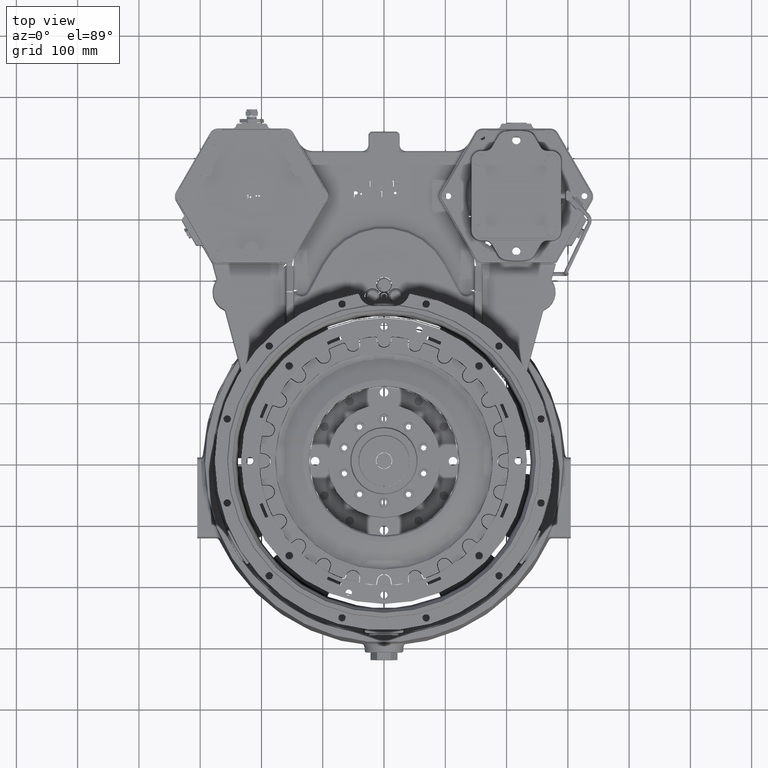
[diagram: clean part render]
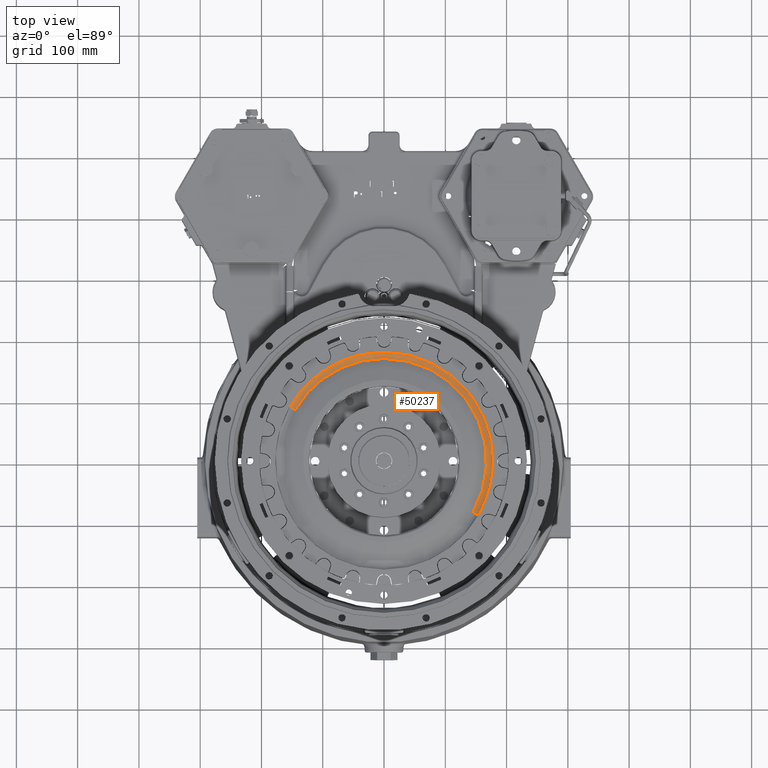
[diagram: same view with one face highlighted and labeled with its STEP entity id]
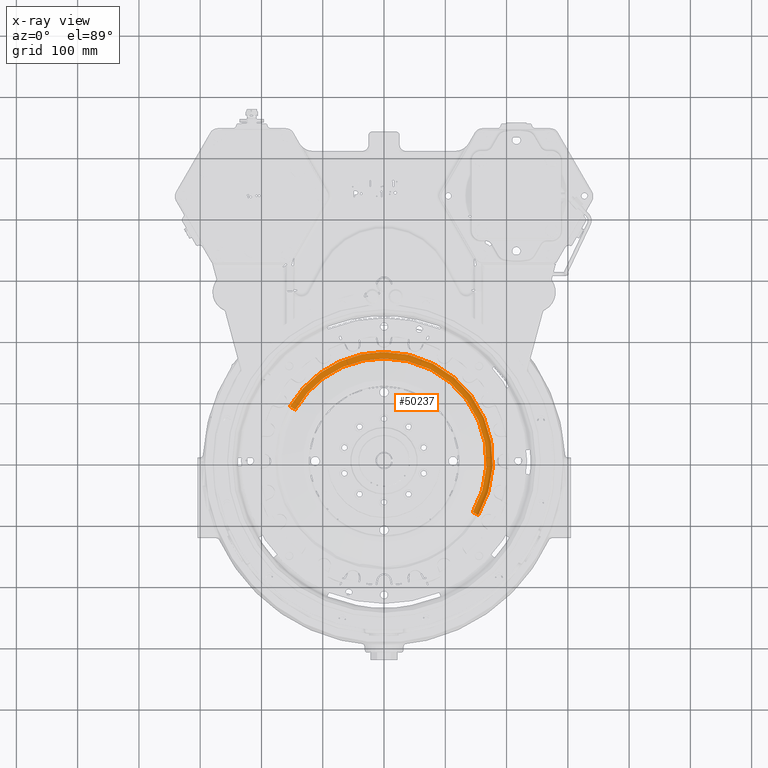
[diagram: x-ray of the same camera — body ghosted, the highlighted face saturated]
A machine part, top view. The second image highlights one B-rep face of the part: STEP entity #50237.
The next image is the same camera in x-ray: the body ghosted, the highlighted face saturated — about 0% of this face is hidden behind the body in this view.
In plain terms, the highlighted face is a freeform B-spline surface patch.
Its self-contained STEP definition (entity closure, byte-faithful):
#5555 = DIRECTION ( 'NONE',  ( 0.8660254037844367100, -0.5000000000000033300, 3.518312401981130000E-015 ) ) ;
#7209 = CARTESIAN_POINT ( 'NONE',  ( 5.052826164383231900E-015, 6.564501840092637900E-013, 93.60950430527979900 ) ) ;
#9777 = CARTESIAN_POINT ( 'NONE',  ( 23.49752889336309600, 391.4748006249931800, 89.89060450035138700 ) ) ;
#12243 = CARTESIAN_POINT ( 'NONE',  ( -153.7195091717375100, 88.75000000000127900, 93.60950430527917400 ) ) ;
#13394 =( BOUNDED_SURFACE ( )  B_SPLINE_SURFACE ( 3, 3, ( 
 ( #96590, #67897, #169939, #82561 ),
 ( #184705, #97228, #9777, #111826 ),
 ( #24474, #126537, #39209, #141216 ),
 ( #53816, #155896, #68540, #170572 ) ),
 .UNSPECIFIED., .F., .F., .F. ) 
 B_SPLINE_SURFACE_WITH_KNOTS ( ( 4, 4 ),
 ( 4, 4 ),
 ( 0.0000000000000000000, 1.000000000000000000 ),
 ( 0.0000000000000000000, 1.000000000000000000 ),
 .UNSPECIFIED. ) 
 GEOMETRIC_REPRESENTATION_ITEM ( )  RATIONAL_B_SPLINE_SURFACE ( (
 ( 1.000000000000000000, 0.3333333333333334300, 0.3333333333333334300, 1.000000000000000000),
 ( 0.8540516408934673000, 0.2846838802978224900, 0.2846838802978224900, 0.8540516408934673000),
 ( 0.8540516408934673000, 0.2846838802978224900, 0.2846838802978224900, 0.8540516408934673000),
 ( 1.000000000000000000, 0.3333333333333334300, 0.3333333333333334300, 1.000000000000000000) ) ) 
 REPRESENTATION_ITEM ( '' )  SURFACE ( )  );
#21838 = DIRECTION ( 'NONE',  ( 0.8660254037844367100, -0.5000000000000033300, 3.518312401981130000E-015 ) ) ;
#22291 = DIRECTION ( 'NONE',  ( 0.5000000000000033300, 0.8660254037844368200, -6.047707824420468300E-015 ) ) ;
#24474 = CARTESIAN_POINT ( 'NONE',  ( 148.4506586932584200, -85.70802775793014000, 88.30469595753220300 ) ) ;
#24581 = ORIENTED_EDGE ( 'NONE', *, *, #58528, .F. ) ;
#26157 = DIRECTION ( 'NONE',  ( -0.0000000000000000000, 6.983291480818741000E-015, 1.000000000000000000 ) ) ;
#30792 = VERTEX_POINT ( 'NONE', #12243 ) ;
#38412 = CARTESIAN_POINT ( 'NONE',  ( -144.9063219721473700, 83.66170399789926600, 89.54616092536556900 ) ) ;
#39007 = CARTESIAN_POINT ( 'NONE',  ( -147.1120595871193500, 84.93518720366508000, 97.94256037111335900 ) ) ;
#39209 = CARTESIAN_POINT ( 'NONE',  ( 22.96539682260309700, 382.6093451444481800, 88.30469595752893500 ) ) ;
#40049 = VERTEX_POINT ( 'NONE', #38412 ) ;
#44016 = CARTESIAN_POINT ( 'NONE',  ( 144.9063219721473700, -83.66170399789797300, 89.54616092536673500 ) ) ;
#50237 = ADVANCED_FACE ( 'NONE', ( #159745 ), #13394, .F. ) ;
#53628 = DIRECTION ( 'NONE',  ( -0.8660254037844361500, 0.5000000000000040000, -3.163317448590893600E-015 ) ) ;
#53816 = CARTESIAN_POINT ( 'NONE',  ( 144.9063219721473700, -83.66170399789797300, 89.54616092536673500 ) ) ;
#58528 = EDGE_CURVE ( 'NONE', #111419, #131468, #159134, .T. ) ;
#63114 = CARTESIAN_POINT ( 'NONE',  ( 5.052826164383231900E-015, 6.280746728006716900E-013, 89.54616092536615200 ) ) ;
#67897 = CARTESIAN_POINT ( 'NONE',  ( 331.2195091717387100, 218.6890183434750300, 93.60950430527826400 ) ) ;
#68025 = CIRCLE ( 'NONE', #131271, 167.3234079957961200 ) ;
#68540 = CARTESIAN_POINT ( 'NONE',  ( 22.41708602364983300, 373.4743479421939000, 89.54616092536355200 ) ) ;
#73805 = CIRCLE ( 'NONE', #138403, 8.774198627454444100 ) ;
#77115 = ORIENTED_EDGE ( 'NONE', *, *, #175854, .F. ) ;
#77346 = CARTESIAN_POINT ( 'NONE',  ( 2.679030684924874700E-014, 177.5000000000006500, 93.60950430527856300 ) ) ;
#77792 = DIRECTION ( 'NONE',  ( -0.8660254037844371500, 0.5000000000000024400, -3.483476071338753200E-015 ) ) ;
#82561 = CARTESIAN_POINT ( 'NONE',  ( -153.7195091717375100, 88.75000000000126500, 93.60950430527918800 ) ) ;
#83531 = ORIENTED_EDGE ( 'NONE', *, *, #183733, .T. ) ;
#93014 = DIRECTION ( 'NONE',  ( -0.0000000000000000000, -6.983291480818741000E-015, -1.000000000000000000 ) ) ;
#96590 = CARTESIAN_POINT ( 'NONE',  ( 153.7195091717375100, -88.74999999999994300, 93.60950430528042400 ) ) ;
#97228 = CARTESIAN_POINT ( 'NONE',  ( 327.2783578360118800, 216.0868572603056400, 89.89060450035262300 ) ) ;
#98930 = CIRCLE ( 'NONE', #138471, 167.3234079957960900 ) ;
#102510 = CIRCLE ( 'NONE', #140478, 8.774198627454444100 ) ;
#109253 = DIRECTION ( 'NONE',  ( -0.0000000000000000000, -6.983291480818741000E-015, -1.000000000000000000 ) ) ;
#109723 = CARTESIAN_POINT ( 'NONE',  ( 147.1120595871193500, -84.93518720366368800, 97.94256037111453800 ) ) ;
#111419 = VERTEX_POINT ( 'NONE', #77346 ) ;
#111826 = CARTESIAN_POINT ( 'NONE',  ( -151.8904144713243600, 87.69397168234438300, 89.89060450035351800 ) ) ;
#113515 = CARTESIAN_POINT ( 'NONE',  ( 5.052826164383231900E-015, 6.280746728006716900E-013, 89.54616092536615200 ) ) ;
#113599 = AXIS2_PLACEMENT_3D ( 'NONE', #180487, #93014, #5555 ) ;
#115092 = CARTESIAN_POINT ( 'NONE',  ( 1.852893143996088000E-015, 167.3234079957967700, 89.54616092536498700 ) ) ;
#121125 = VERTEX_POINT ( 'NONE', #44016 ) ;
#124403 = DIRECTION ( 'NONE',  ( 0.8660254037844361500, -0.5000000000000040000, 3.163317448590893600E-015 ) ) ;
#126537 = CARTESIAN_POINT ( 'NONE',  ( 319.8667142091198900, 211.1932896285866300, 88.30469595753012900 ) ) ;
#128230 = DIRECTION ( 'NONE',  ( -0.8660254037844368200, 0.5000000000000033300, -3.483476071338753600E-015 ) ) ;
#131271 = AXIS2_PLACEMENT_3D ( 'NONE', #63114, #165184, #77792 ) ;
#131468 = VERTEX_POINT ( 'NONE', #176899 ) ;
#138403 = AXIS2_PLACEMENT_3D ( 'NONE', #39007, #141036, #53628 ) ;
#138471 = AXIS2_PLACEMENT_3D ( 'NONE', #113515, #26157, #128230 ) ;
#140478 = AXIS2_PLACEMENT_3D ( 'NONE', #109723, #22291, #124403 ) ;
#141036 = DIRECTION ( 'NONE',  ( -0.5000000000000034400, -0.8660254037844367100, 6.047707824420468300E-015 ) ) ;
#141216 = CARTESIAN_POINT ( 'NONE',  ( -148.4506586932584200, 85.70802775793140400, 88.30469595753101000 ) ) ;
#142206 = VERTEX_POINT ( 'NONE', #115092 ) ;
#144001 = EDGE_CURVE ( 'NONE', #121125, #142206, #98930, .T. ) ;
#147893 = ORIENTED_EDGE ( 'NONE', *, *, #150363, .F. ) ;
#148600 = CIRCLE ( 'NONE', #113599, 177.5000000000000000 ) ;
#150363 = EDGE_CURVE ( 'NONE', #142206, #40049, #68025, .T. ) ;
#155896 = CARTESIAN_POINT ( 'NONE',  ( 312.2297299679445400, 206.1509399463967000, 89.54616092536471700 ) ) ;
#159134 = CIRCLE ( 'NONE', #178408, 177.5000000000000000 ) ;
#159702 = EDGE_CURVE ( 'NONE', #131468, #121125, #102510, .T. ) ;
#159745 = FACE_OUTER_BOUND ( 'NONE', #165101, .T. ) ;
#165101 = EDGE_LOOP ( 'NONE', ( #77115, #83531, #147893, #181721, #166183, #24581 ) ) ;
#165184 = DIRECTION ( 'NONE',  ( -0.0000000000000000000, 6.983291480818741000E-015, 1.000000000000000000 ) ) ;
#166183 = ORIENTED_EDGE ( 'NONE', *, *, #159702, .F. ) ;
#169939 = CARTESIAN_POINT ( 'NONE',  ( 23.78049082826366600, 396.1890183434762200, 93.60950430527704200 ) ) ;
#170572 = CARTESIAN_POINT ( 'NONE',  ( -144.9063219721473700, 83.66170399789923800, 89.54616092536556900 ) ) ;
#175854 = EDGE_CURVE ( 'NONE', #30792, #111419, #148600, .T. ) ;
#176899 = CARTESIAN_POINT ( 'NONE',  ( 153.7195091717375100, -88.74999999999994300, 93.60950430528042400 ) ) ;
#178408 = AXIS2_PLACEMENT_3D ( 'NONE', #7209, #109253, #21838 ) ;
#180487 = CARTESIAN_POINT ( 'NONE',  ( 5.052826164383231900E-015, 6.564501840092637900E-013, 93.60950430527979900 ) ) ;
#181721 = ORIENTED_EDGE ( 'NONE', *, *, #144001, .F. ) ;
#183733 = EDGE_CURVE ( 'NONE', #30792, #40049, #73805, .T. ) ;
#184705 = CARTESIAN_POINT ( 'NONE',  ( 151.8904144713243600, -87.69397168234311800, 89.89060450035474000 ) ) ;